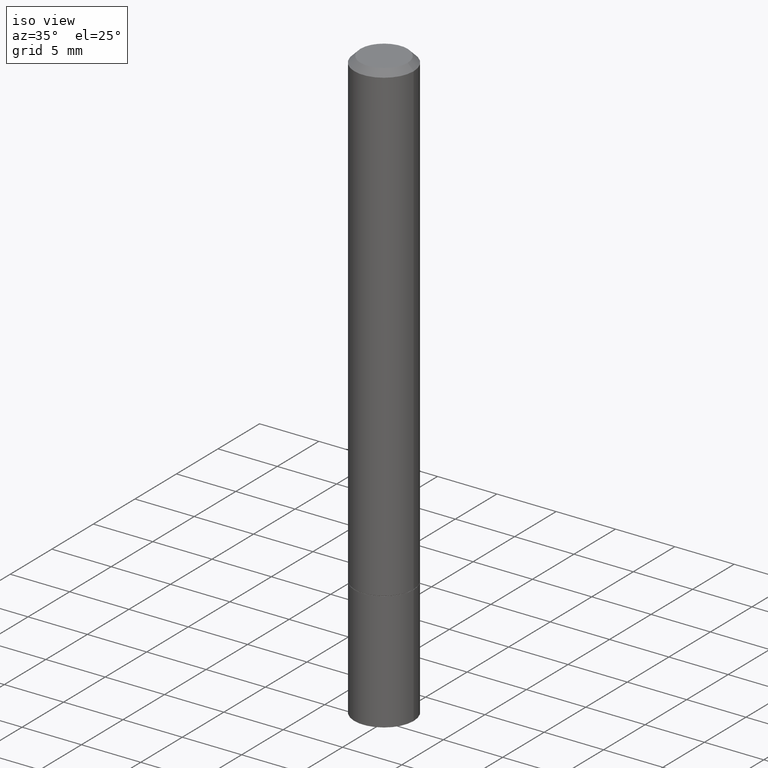
[diagram: clean part render]
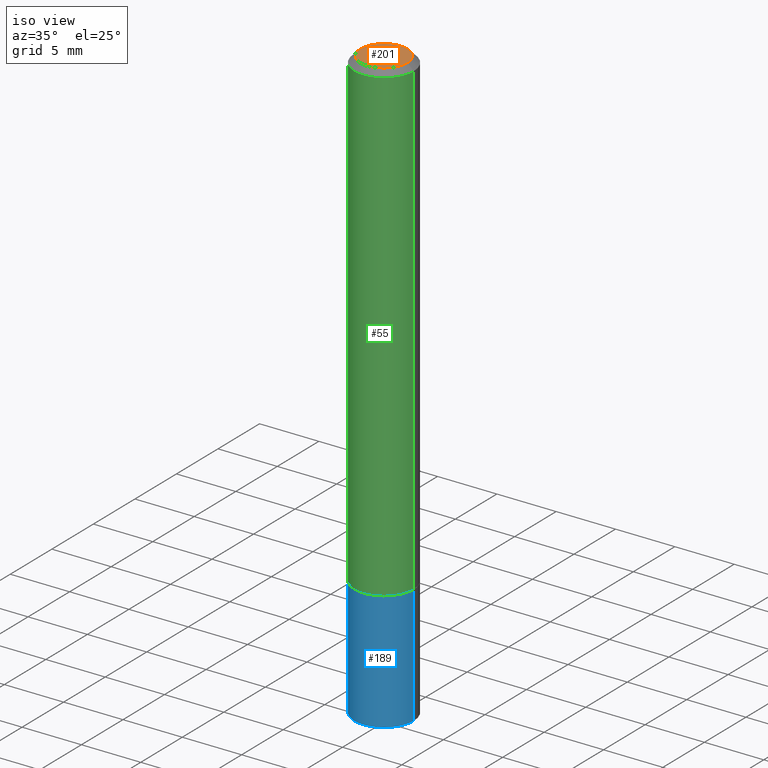
[diagram: same view with three faces highlighted in distinct colors, each labeled with its STEP entity id]
A machine part, iso view with three faces highlighted in distinct colors.
Their STEP definitions:

[orange] entity #201 — the highlighted planar face has unit normal (0, -0, -1).
#2 = DIRECTION ( 'NONE',  ( -1.000000000000000000, 6.982962677686265922E-15, -4.876176775795935793E-29 ) ) ;
#3 = CARTESIAN_POINT ( 'NONE',  ( 0.07844999999999981155, -6.417258612913221441E-16, 4.159044147803931210E-30 ) ) ;
#4 = DIRECTION ( 'NONE',  ( 2.438088387897960049E-29, -3.491481338843145188E-15, -1.000000000000000000 ) ) ;
#20 = CIRCLE ( 'NONE', #52, 0.07844999999999981155 ) ;
#29 = VERTEX_POINT ( 'NONE', #130 ) ;
#31 = DIRECTION ( 'NONE',  ( -2.445468806185136597E-29, 3.491481338843145583E-15, 1.000000000000000000 ) ) ;
#35 = ORIENTED_EDGE ( 'NONE', *, *, #176, .T. ) ;
#52 = AXIS2_PLACEMENT_3D ( 'NONE', #319, #31, #309 ) ;
#80 = EDGE_CURVE ( 'NONE', #29, #111, #20, .T. ) ;
#92 = ORIENTED_EDGE ( 'NONE', *, *, #80, .T. ) ;
#111 = VERTEX_POINT ( 'NONE', #3 ) ;
#130 = CARTESIAN_POINT ( 'NONE',  ( -0.07844999999999981155, 5.827282354529173170E-16, -3.953055038153090764E-30 ) ) ;
#149 = PLANE ( 'NONE',  #304 ) ;
#176 = EDGE_CURVE ( 'NONE', #111, #29, #225, .T. ) ;
#182 = DIRECTION ( 'NONE',  ( 1.000000000000000000, -6.982962677686265922E-15, 4.876176775795935793E-29 ) ) ;
#195 = CARTESIAN_POINT ( 'NONE',  ( 5.478134220644862595E-16, 0.07844999999999981155, -2.739067110322441158E-16 ) ) ;
#201 = ADVANCED_FACE ( 'NONE', ( #313 ), #149, .F. ) ;
#225 = CIRCLE ( 'NONE', #232, 0.07844999999999981155 ) ;
#232 = AXIS2_PLACEMENT_3D ( 'NONE', #353, #253, #182 ) ;
#247 = EDGE_LOOP ( 'NONE', ( #92, #35 ) ) ;
#253 = DIRECTION ( 'NONE',  ( -2.445468806185136597E-29, 3.491481338843145583E-15, 1.000000000000000000 ) ) ;
#304 = AXIS2_PLACEMENT_3D ( 'NONE', #195, #4, #2 ) ;
#309 = DIRECTION ( 'NONE',  ( 1.000000000000000000, -6.982962677686265922E-15, 4.876176775795935793E-29 ) ) ;
#313 = FACE_OUTER_BOUND ( 'NONE', #247, .T. ) ;
#319 = CARTESIAN_POINT ( 'NONE',  ( 0.000000000000000000, 0.000000000000000000, 0.000000000000000000 ) ) ;
#353 = CARTESIAN_POINT ( 'NONE',  ( 0.000000000000000000, 0.000000000000000000, 0.000000000000000000 ) ) ;

[blue] entity #189 — the highlighted cylindrical surface (edge-blend (fillet) strip) has radius 2.5006 mm, axis along (-0, 0, 1).
#9 = LINE ( 'NONE', #100, #284 ) ;
#12 = EDGE_CURVE ( 'NONE', #117, #337, #9, .T. ) ;
#24 = VERTEX_POINT ( 'NONE', #294 ) ;
#36 = FACE_OUTER_BOUND ( 'NONE', #99, .T. ) ;
#49 = VECTOR ( 'NONE', #359, 39.37007874015748143 ) ;
#68 = CARTESIAN_POINT ( 'NONE',  ( 3.851124275980353356E-29, -5.498384812410186155E-15, -1.574800000000000200 ) ) ;
#73 = AXIS2_PLACEMENT_3D ( 'NONE', #68, #181, #289 ) ;
#99 = EDGE_LOOP ( 'NONE', ( #121, #198, #227, #363 ) ) ;
#100 = CARTESIAN_POINT ( 'NONE',  ( 0.09844999999999999585, -6.874726756182129545E-16, 4.800596035771099214E-30 ) ) ;
#105 = DIRECTION ( 'NONE',  ( -2.445468806185136597E-29, 3.491481338843145583E-15, 1.000000000000000000 ) ) ;
#112 = CARTESIAN_POINT ( 'NONE',  ( 0.09844999999999999585, -6.185857488028398715E-15, -1.574800000000000200 ) ) ;
#113 = EDGE_CURVE ( 'NONE', #276, #337, #243, .T. ) ;
#117 = VERTEX_POINT ( 'NONE', #346 ) ;
#121 = ORIENTED_EDGE ( 'NONE', *, *, #330, .F. ) ;
#124 = DIRECTION ( 'NONE',  ( -2.445468806185136877E-29, 3.491481338843145188E-15, 1.000000000000000000 ) ) ;
#144 = CIRCLE ( 'NONE', #324, 0.09844999999999999585 ) ;
#154 = CYLINDRICAL_SURFACE ( 'NONE', #177, 0.09844999999999999585 ) ;
#161 = EDGE_CURVE ( 'NONE', #24, #117, #144, .T. ) ;
#172 = DIRECTION ( 'NONE',  ( -2.445468806185136597E-29, 3.491481338843145583E-15, 1.000000000000000000 ) ) ;
#177 = AXIS2_PLACEMENT_3D ( 'NONE', #344, #172, #262 ) ;
#181 = DIRECTION ( 'NONE',  ( -2.445468806185136597E-29, 3.491481338843145583E-15, 1.000000000000000000 ) ) ;
#189 = ADVANCED_FACE ( 'NONE', ( #36 ), #154, .T. ) ;
#198 = ORIENTED_EDGE ( 'NONE', *, *, #161, .T. ) ;
#215 = DIRECTION ( 'NONE',  ( 1.000000000000000000, -6.982962677686265922E-15, 0.000000000000000000 ) ) ;
#227 = ORIENTED_EDGE ( 'NONE', *, *, #12, .T. ) ;
#243 = CIRCLE ( 'NONE', #73, 0.09844999999999999585 ) ;
#262 = DIRECTION ( 'NONE',  ( 1.000000000000000000, -6.982962677686266711E-15, 4.876176775795936353E-29 ) ) ;
#268 = CARTESIAN_POINT ( 'NONE',  ( 4.813905344975441835E-29, -6.872981015512731707E-15, -1.968500000000000139 ) ) ;
#276 = VERTEX_POINT ( 'NONE', #296 ) ;
#284 = VECTOR ( 'NONE', #124, 39.37007874015748143 ) ;
#289 = DIRECTION ( 'NONE',  ( 1.000000000000000000, -6.982962677686265922E-15, 0.000000000000000000 ) ) ;
#294 = CARTESIAN_POINT ( 'NONE',  ( -0.09844999999999999585, -5.486153590605640426E-15, -1.968500000000000139 ) ) ;
#296 = CARTESIAN_POINT ( 'NONE',  ( -0.09844999999999999585, -5.486153590605640426E-15, -1.574800000000000200 ) ) ;
#324 = AXIS2_PLACEMENT_3D ( 'NONE', #268, #105, #215 ) ;
#330 = EDGE_CURVE ( 'NONE', #24, #276, #335, .T. ) ;
#335 = LINE ( 'NONE', #364, #49 ) ;
#337 = VERTEX_POINT ( 'NONE', #112 ) ;
#344 = CARTESIAN_POINT ( 'NONE',  ( 0.000000000000000000, 0.000000000000000000, 0.000000000000000000 ) ) ;
#346 = CARTESIAN_POINT ( 'NONE',  ( 0.09844999999999999585, -7.560453691130944267E-15, -1.968500000000000139 ) ) ;
#359 = DIRECTION ( 'NONE',  ( -2.445468806185136877E-29, 3.491481338843145188E-15, 1.000000000000000000 ) ) ;
#363 = ORIENTED_EDGE ( 'NONE', *, *, #113, .F. ) ;
#364 = CARTESIAN_POINT ( 'NONE',  ( -0.09844999999999999585, 6.995293233558186035E-16, -4.842691596355954042E-30 ) ) ;

[green] entity #55 — the highlighted cylindrical surface (edge-blend (fillet) strip) has radius 2.5006 mm, axis along (-0, 0, 1).
#5 = CYLINDRICAL_SURFACE ( 'NONE', #269, 0.09844999999999988483 ) ;
#7 = CARTESIAN_POINT ( 'NONE',  ( 0.09844999999999978768, -7.452456546574688288E-16, -0.02000000000000002123 ) ) ;
#13 = EDGE_LOOP ( 'NONE', ( #88, #339, #334, #169 ) ) ;
#34 = DIRECTION ( 'NONE',  ( -2.445468806185136877E-29, 3.491481338843145188E-15, 1.000000000000000000 ) ) ;
#54 = VERTEX_POINT ( 'NONE', #153 ) ;
#55 = ADVANCED_FACE ( 'NONE', ( #260 ), #5, .T. ) ;
#61 = EDGE_CURVE ( 'NONE', #193, #287, #331, .T. ) ;
#63 = DIRECTION ( 'NONE',  ( -2.445468806185136597E-29, 3.491481338843145583E-15, 1.000000000000000000 ) ) ;
#66 = VECTOR ( 'NONE', #34, 39.37007874015748143 ) ;
#77 = CIRCLE ( 'NONE', #125, 0.09844999999999978768 ) ;
#88 = ORIENTED_EDGE ( 'NONE', *, *, #254, .F. ) ;
#90 = DIRECTION ( 'NONE',  ( 1.000000000000000000, -6.982962677686265922E-15, 0.000000000000000000 ) ) ;
#95 = CARTESIAN_POINT ( 'NONE',  ( 3.848678807174168313E-29, -5.494893331071342359E-15, -1.573800000000000088 ) ) ;
#107 = AXIS2_PLACEMENT_3D ( 'NONE', #95, #63, #90 ) ;
#120 = LINE ( 'NONE', #208, #66 ) ;
#125 = AXIS2_PLACEMENT_3D ( 'NONE', #280, #224, #259 ) ;
#153 = CARTESIAN_POINT ( 'NONE',  ( -0.09844999999999978768, 6.176430488413484730E-16, -0.02000000000000002123 ) ) ;
#158 = CARTESIAN_POINT ( 'NONE',  ( 0.09844999999999999585, -6.182366006689555708E-15, -1.573800000000000088 ) ) ;
#169 = ORIENTED_EDGE ( 'NONE', *, *, #191, .F. ) ;
#191 = EDGE_CURVE ( 'NONE', #54, #204, #77, .T. ) ;
#193 = VERTEX_POINT ( 'NONE', #347 ) ;
#200 = DIRECTION ( 'NONE',  ( -2.445468806185136877E-29, 3.491481338843145188E-15, 1.000000000000000000 ) ) ;
#204 = VERTEX_POINT ( 'NONE', #7 ) ;
#208 = CARTESIAN_POINT ( 'NONE',  ( -0.09844999999999988483, 6.995293233558178146E-16, -4.842691596355949137E-30 ) ) ;
#224 = DIRECTION ( 'NONE',  ( -2.445468806185136597E-29, 3.491481338843145583E-15, 1.000000000000000000 ) ) ;
#230 = DIRECTION ( 'NONE',  ( -2.445468806185136597E-29, 3.491481338843145583E-15, 1.000000000000000000 ) ) ;
#237 = CARTESIAN_POINT ( 'NONE',  ( 0.000000000000000000, 0.000000000000000000, 0.000000000000000000 ) ) ;
#250 = VECTOR ( 'NONE', #200, 39.37007874015748143 ) ;
#254 = EDGE_CURVE ( 'NONE', #193, #54, #120, .T. ) ;
#259 = DIRECTION ( 'NONE',  ( 1.000000000000000000, -6.982962677686266711E-15, 0.000000000000000000 ) ) ;
#260 = FACE_OUTER_BOUND ( 'NONE', #13, .T. ) ;
#269 = AXIS2_PLACEMENT_3D ( 'NONE', #237, #230, #343 ) ;
#273 = LINE ( 'NONE', #365, #250 ) ;
#280 = CARTESIAN_POINT ( 'NONE',  ( 4.890937612370278413E-31, -6.982962677686297772E-17, -0.02000000000000002123 ) ) ;
#287 = VERTEX_POINT ( 'NONE', #158 ) ;
#315 = EDGE_CURVE ( 'NONE', #287, #204, #273, .T. ) ;
#331 = CIRCLE ( 'NONE', #107, 0.09844999999999999585 ) ;
#334 = ORIENTED_EDGE ( 'NONE', *, *, #315, .T. ) ;
#339 = ORIENTED_EDGE ( 'NONE', *, *, #61, .T. ) ;
#343 = DIRECTION ( 'NONE',  ( 1.000000000000000000, -6.982962677686266711E-15, 4.876176775795936353E-29 ) ) ;
#347 = CARTESIAN_POINT ( 'NONE',  ( -0.09844999999999999585, -2.082832155568281168E-15, -1.573800000000000088 ) ) ;
#365 = CARTESIAN_POINT ( 'NONE',  ( 0.09844999999999988483, -6.874726756182121656E-16, 4.800596035771093609E-30 ) ) ;